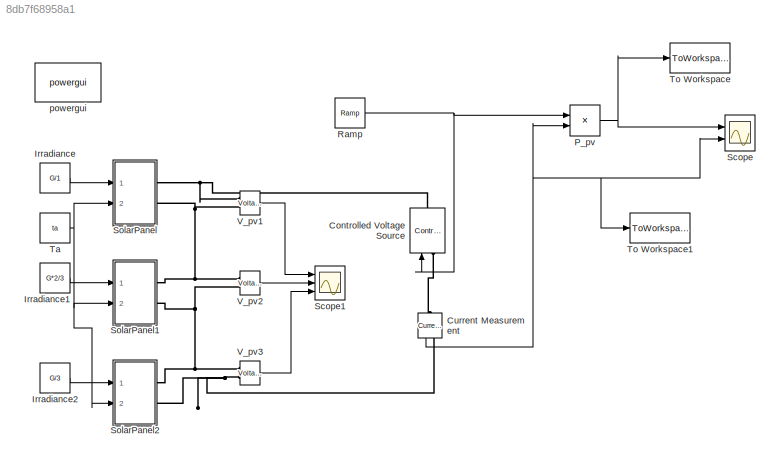
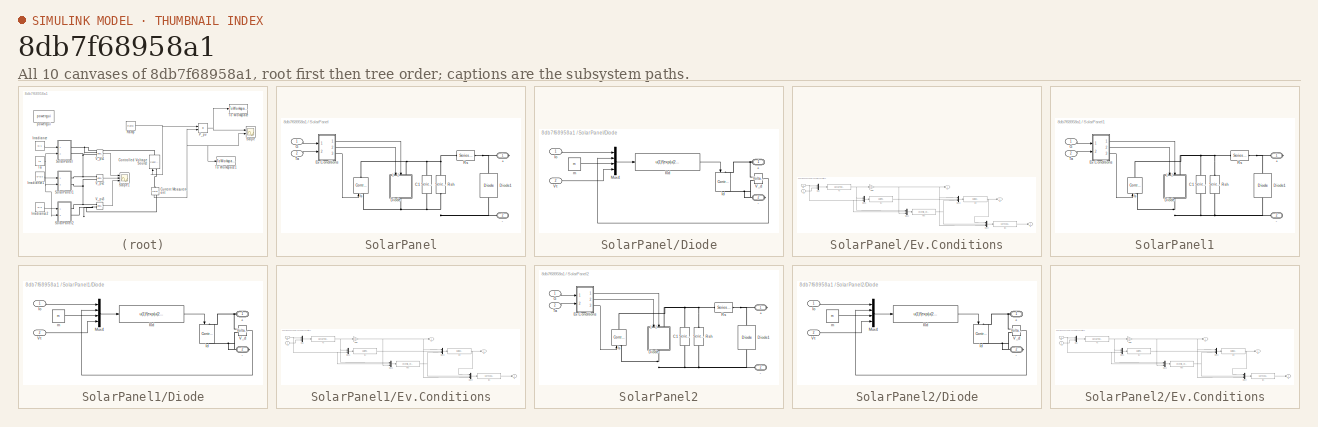
[diagram: thumbnail index - all 10 canvases of the model, root first then tree order]
MODEL slx_8db7f68958a1
KIND model
CONFIG AbsTol = auto
CONFIG FixedStep = 2e-6
CONFIG MaxStep = auto
CONFIG MinStep = auto
CONFIG RelTol = 2e-6
CONFIG SampleTimeConstraint = Unconstrained
CONFIG Solver = ode4
CONFIG SolverMode = Auto
CONFIG SolverName = ode4
CONFIG StartTime = 0.0
CONFIG StopTime = 1.1
BLOCK [Reference] Controlled Voltage Source  REF=powerlib/Electrical
Sources/Controlled Voltage Source
  Ports = [1, 0, 0, 0, 0, 1, 1]
  SourceBlock = powerlib/Electrical\nSources/Controlled Voltage Source
  SourceType = Controlled Voltage Source
BLOCK [Reference] Current Measurement  REF=powerlib/Measurements/Current Measurement
  Ports = [0, 1, 0, 0, 0, 1, 1]
  SourceBlock = powerlib/Measurements/Current Measurement
  SourceType = Current Measurement
  UserDataPersistent = on
BLOCK [Constant] Irradiance
  Value = G/1
BLOCK [Constant] Irradiance1
  Value = G*2/3
BLOCK [Constant] Irradiance2
  Value = G/3
BLOCK [Product] P_pv
  InputSameDT = off
  OutDataTypeStr = Inherit: Inherit via internal rule
  Ports = [2, 1]
  RndMeth = Floor
  SaturateOnIntegerOverflow = off
BLOCK [Reference] Ramp  REF=simulink/Sources/Ramp
  Ports = [0, 1]
  SourceBlock = simulink/Sources/Ramp
  SourceType = Ramp
BLOCK [Scope] Scope
  NumInputPorts = 2
  Ports = [2]
  ScopeSpecificationString = Simulink.scopes.TimeScopeBlockCfg('CurrentConfiguration', extmgr.ConfigurationSet(extmgr.Configuration('Core','General UI',true),extmgr.Configuration('Core','Source UI',true),extmgr.Configuration('Sources','WiredSimulink',true),extmgr.Configuration('Visuals','Time Domain',true,'SerializedDisplays',{struct('MinYLimReal','-21.50167','MaxYLimReal','440.88661','YLabelReal','','MinYLimMag','0.00000','M...<+2069ch>
BLOCK [Scope] Scope1
  NumInputPorts = 3
  Ports = [3]
  ScopeSpecificationString = Simulink.scopes.TimeScopeBlockCfg('CurrentConfiguration', extmgr.ConfigurationSet(extmgr.Configuration('Core','General UI',true),extmgr.Configuration('Core','Source UI',true),extmgr.Configuration('Sources','WiredSimulink',true,'DataLoggingVariableName','ScopeData1'),extmgr.Configuration('Visuals','Time Domain',true,'SerializedDisplays',{struct('MinYLimReal','-4.46712','MaxYLimReal','40.1469','YLab...<+1526ch>
BLOCK [SubSystem] SolarPanel
  Ports = [2, 0, 0, 0, 0, 0, 2]
  RequestExecContextInheritance = off
  Variant = off
BLOCK [PMIOPort] SolarPanel/+
  Port = 1
  Side = Right
BLOCK [PMIOPort] SolarPanel/-
  Port = 2
  Side = Right
BLOCK [Reference] SolarPanel/C1  REF=powerlib/Elements/Series RLC Branch
  Ports = [0, 0, 0, 0, 0, 1, 1]
  SourceBlock = powerlib/Elements/Series RLC Branch
  SourceType = Series RLC Branch
BLOCK [SubSystem] SolarPanel/Diode
  AncestorBlock = re_lib/Solar/PV Array/Diode Rsh
  Ports = [2, 0, 0, 0, 0, 1, 1]
  RequestExecContextInheritance = off
  Variant = off
BLOCK [PMIOPort] SolarPanel/Diode/+
  Port = 1
  Side = Left
BLOCK [PMIOPort] SolarPanel/Diode/-
  Port = 2
  Side = Right
BLOCK [Fcn] SolarPanel/Diode/I0d
  Expr = u(1)*(exp(u(2)/(u(3)*u(4)))-1)
BLOCK [Reference] SolarPanel/Diode/Id  REF=powerlib/Electrical
Sources/Controlled Current Source
  Ports = [1, 0, 0, 0, 0, 1, 1]
  SourceBlock = powerlib/Electrical\nSources/Controlled Current Source
  SourceType = Controlled Current Source
BLOCK [Inport] SolarPanel/Diode/Io
  IconDisplay = Port number
BLOCK [Mux] SolarPanel/Diode/Mux4
  DisplayOption = bar
  Ports = [4, 1]
BLOCK [Reference] SolarPanel/Diode/V_d  REF=powerlib/Measurements/Voltage Measurement
  Ports = [0, 1, 0, 0, 0, 2]
  SourceBlock = powerlib/Measurements/Voltage Measurement
  SourceType = Voltage Measurement
BLOCK [Inport] SolarPanel/Diode/Vt
  IconDisplay = Port number
  Port = 2
BLOCK [Constant] SolarPanel/Diode/m
  Value = m
BLOCK [Reference] SolarPanel/Diode1  REF=powerlib/Power
Electronics/Diode
  Ports = [0, 0, 0, 0, 0, 1, 1]
  SourceBlock = powerlib/Power\nElectronics/Diode
  SourceType = Diode
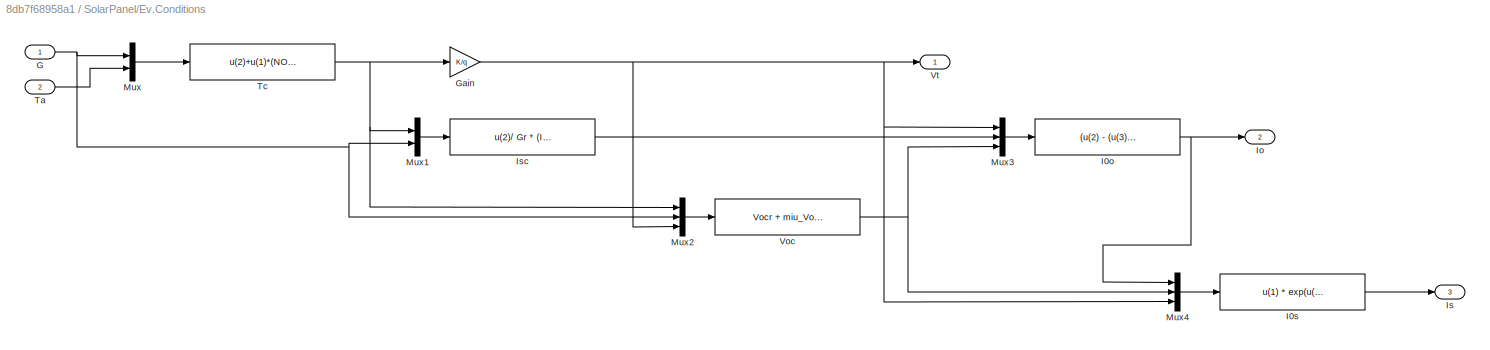
BLOCK [SubSystem] SolarPanel/Ev.Conditions
  Ports = [2, 3]
  RequestExecContextInheritance = off
  Variant = off
BLOCK [Inport] SolarPanel/Ev.Conditions/G
  IconDisplay = Port number
BLOCK [Gain] SolarPanel/Ev.Conditions/Gain
  Gain = K/q
  OutDataTypeStr = Inherit: Inherit via internal rule
  ParamDataTypeStr = Inherit: Inherit via internal rule
  SaturateOnIntegerOverflow = off
BLOCK [Fcn] SolarPanel/Ev.Conditions/I0o
  Expr = (u(2) - (u(3) - Rs*u(2))/ Rsh) * exp(-u(3)/ (m*u(1)))
BLOCK [Fcn] SolarPanel/Ev.Conditions/I0s
  Expr = u(1) * exp(u(2)/ (m*u(3))) + u(2)/ Rsh
BLOCK [Outport] SolarPanel/Ev.Conditions/Io
  IconDisplay = Port number
  Port = 2
BLOCK [Outport] SolarPanel/Ev.Conditions/Is
  IconDisplay = Port number
  Port = 3
BLOCK [Fcn] SolarPanel/Ev.Conditions/Isc
  Expr = u(2)/ Gr * (Iscr + miu_Isc*(u(1) - Tr))
BLOCK [Mux] SolarPanel/Ev.Conditions/Mux
  DisplayOption = bar
  Inputs = 2
  Ports = [2, 1]
BLOCK [Mux] SolarPanel/Ev.Conditions/Mux1
  DisplayOption = bar
  Inputs = 2
  Ports = [2, 1]
BLOCK [Mux] SolarPanel/Ev.Conditions/Mux2
  DisplayOption = bar
  Inputs = 3
  Ports = [3, 1]
BLOCK [Mux] SolarPanel/Ev.Conditions/Mux3
  DisplayOption = bar
  Inputs = 3
  Ports = [3, 1]
BLOCK [Mux] SolarPanel/Ev.Conditions/Mux4
  DisplayOption = bar
  Inputs = 3
  Ports = [3, 1]
BLOCK [Inport] SolarPanel/Ev.Conditions/Ta
  IconDisplay = Port number
  Port = 2
BLOCK [Fcn] SolarPanel/Ev.Conditions/Tc
  Expr = u(2)+u(1)*(NOCT-20)/800+T
BLOCK [Fcn] SolarPanel/Ev.Conditions/Voc
  Expr = Vocr + miu_Voc*(u(1) - Tr) + m*u(3)*log(u(2)/Gr)
BLOCK [Outport] SolarPanel/Ev.Conditions/Vt
  IconDisplay = Port number
BLOCK [Inport] SolarPanel/G
  IconDisplay = Port number
BLOCK [Reference] SolarPanel/Is  REF=powerlib/Electrical
Sources/Controlled Current Source
  Ports = [1, 0, 0, 0, 0, 1, 1]
  SourceBlock = powerlib/Electrical\nSources/Controlled Current Source
  SourceType = Controlled Current Source
BLOCK [Reference] SolarPanel/Rs  REF=powerlib/Elements/Series RLC Branch
  Ports = [0, 0, 0, 0, 0, 1, 1]
  SourceBlock = powerlib/Elements/Series RLC Branch
  SourceType = Series RLC Branch
BLOCK [Reference] SolarPanel/Rsh  REF=powerlib/Elements/Series RLC Branch
  Ports = [0, 0, 0, 0, 0, 1, 1]
  SourceBlock = powerlib/Elements/Series RLC Branch
  SourceType = Series RLC Branch
BLOCK [Inport] SolarPanel/Ta
  IconDisplay = Port number
  Port = 2
BLOCK [SubSystem] SolarPanel1
  Ports = [2, 0, 0, 0, 0, 0, 2]
  RequestExecContextInheritance = off
  Variant = off
BLOCK [PMIOPort] SolarPanel1/+
  Port = 1
  Side = Right
BLOCK [PMIOPort] SolarPanel1/-
  Port = 2
  Side = Right
BLOCK [Reference] SolarPanel1/C1  REF=powerlib/Elements/Series RLC Branch
  Ports = [0, 0, 0, 0, 0, 1, 1]
  SourceBlock = powerlib/Elements/Series RLC Branch
  SourceType = Series RLC Branch
BLOCK [SubSystem] SolarPanel1/Diode
  AncestorBlock = re_lib/Solar/PV Array/Diode Rsh
  Ports = [2, 0, 0, 0, 0, 1, 1]
  RequestExecContextInheritance = off
  Variant = off
BLOCK [PMIOPort] SolarPanel1/Diode/+
  Port = 1
  Side = Left
BLOCK [PMIOPort] SolarPanel1/Diode/-
  Port = 2
  Side = Right
BLOCK [Fcn] SolarPanel1/Diode/I0d
  Expr = u(1)*(exp(u(2)/(u(3)*u(4)))-1)
BLOCK [Reference] SolarPanel1/Diode/Id  REF=powerlib/Electrical
Sources/Controlled Current Source
  Ports = [1, 0, 0, 0, 0, 1, 1]
  SourceBlock = powerlib/Electrical\nSources/Controlled Current Source
  SourceType = Controlled Current Source
BLOCK [Inport] SolarPanel1/Diode/Io
  IconDisplay = Port number
BLOCK [Mux] SolarPanel1/Diode/Mux4
  DisplayOption = bar
  Ports = [4, 1]
BLOCK [Reference] SolarPanel1/Diode/V_d  REF=powerlib/Measurements/Voltage Measurement
  Ports = [0, 1, 0, 0, 0, 2]
  SourceBlock = powerlib/Measurements/Voltage Measurement
  SourceType = Voltage Measurement
BLOCK [Inport] SolarPanel1/Diode/Vt
  IconDisplay = Port number
  Port = 2
BLOCK [Constant] SolarPanel1/Diode/m
  Value = m
BLOCK [Reference] SolarPanel1/Diode1  REF=powerlib/Power
Electronics/Diode
  Ports = [0, 0, 0, 0, 0, 1, 1]
  SourceBlock = powerlib/Power\nElectronics/Diode
  SourceType = Diode
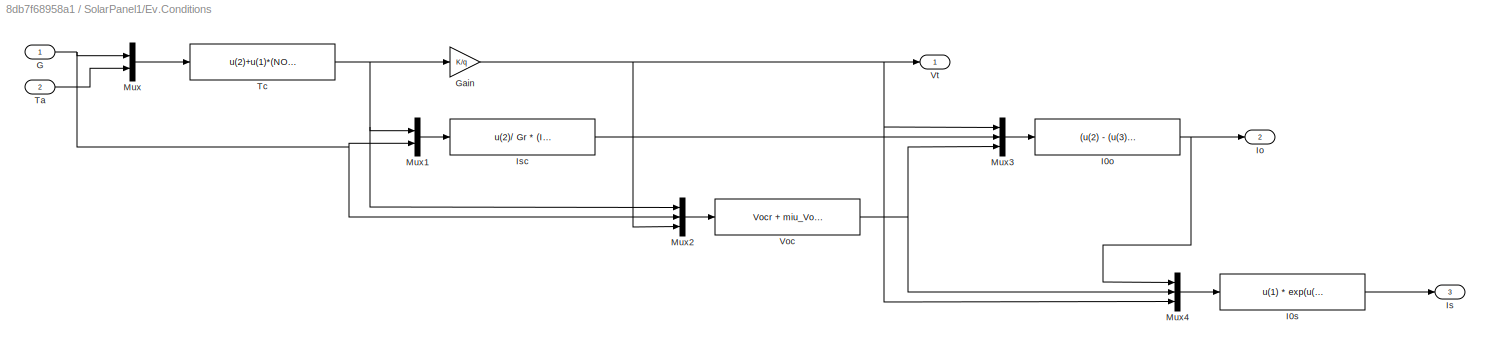
BLOCK [SubSystem] SolarPanel1/Ev.Conditions
  Ports = [2, 3]
  RequestExecContextInheritance = off
  Variant = off
BLOCK [Inport] SolarPanel1/Ev.Conditions/G
  IconDisplay = Port number
BLOCK [Gain] SolarPanel1/Ev.Conditions/Gain
  Gain = K/q
  OutDataTypeStr = Inherit: Inherit via internal rule
  ParamDataTypeStr = Inherit: Inherit via internal rule
  SaturateOnIntegerOverflow = off
BLOCK [Fcn] SolarPanel1/Ev.Conditions/I0o
  Expr = (u(2) - (u(3) - Rs*u(2))/ Rsh) * exp(-u(3)/ (m*u(1)))
BLOCK [Fcn] SolarPanel1/Ev.Conditions/I0s
  Expr = u(1) * exp(u(2)/ (m*u(3))) + u(2)/ Rsh
BLOCK [Outport] SolarPanel1/Ev.Conditions/Io
  IconDisplay = Port number
  Port = 2
BLOCK [Outport] SolarPanel1/Ev.Conditions/Is
  IconDisplay = Port number
  Port = 3
BLOCK [Fcn] SolarPanel1/Ev.Conditions/Isc
  Expr = u(2)/ Gr * (Iscr + miu_Isc*(u(1) - Tr))
BLOCK [Mux] SolarPanel1/Ev.Conditions/Mux
  DisplayOption = bar
  Inputs = 2
  Ports = [2, 1]
BLOCK [Mux] SolarPanel1/Ev.Conditions/Mux1
  DisplayOption = bar
  Inputs = 2
  Ports = [2, 1]
BLOCK [Mux] SolarPanel1/Ev.Conditions/Mux2
  DisplayOption = bar
  Inputs = 3
  Ports = [3, 1]
BLOCK [Mux] SolarPanel1/Ev.Conditions/Mux3
  DisplayOption = bar
  Inputs = 3
  Ports = [3, 1]
BLOCK [Mux] SolarPanel1/Ev.Conditions/Mux4
  DisplayOption = bar
  Inputs = 3
  Ports = [3, 1]
BLOCK [Inport] SolarPanel1/Ev.Conditions/Ta
  IconDisplay = Port number
  Port = 2
BLOCK [Fcn] SolarPanel1/Ev.Conditions/Tc
  Expr = u(2)+u(1)*(NOCT-20)/800+T
BLOCK [Fcn] SolarPanel1/Ev.Conditions/Voc
  Expr = Vocr + miu_Voc*(u(1) - Tr) + m*u(3)*log(u(2)/Gr)
BLOCK [Outport] SolarPanel1/Ev.Conditions/Vt
  IconDisplay = Port number
BLOCK [Inport] SolarPanel1/G
  IconDisplay = Port number
BLOCK [Reference] SolarPanel1/Is  REF=powerlib/Electrical
Sources/Controlled Current Source
  Ports = [1, 0, 0, 0, 0, 1, 1]
  SourceBlock = powerlib/Electrical\nSources/Controlled Current Source
  SourceType = Controlled Current Source
BLOCK [Reference] SolarPanel1/Rs  REF=powerlib/Elements/Series RLC Branch
  Ports = [0, 0, 0, 0, 0, 1, 1]
  SourceBlock = powerlib/Elements/Series RLC Branch
  SourceType = Series RLC Branch
BLOCK [Reference] SolarPanel1/Rsh  REF=powerlib/Elements/Series RLC Branch
  Ports = [0, 0, 0, 0, 0, 1, 1]
  SourceBlock = powerlib/Elements/Series RLC Branch
  SourceType = Series RLC Branch
BLOCK [Inport] SolarPanel1/Ta
  IconDisplay = Port number
  Port = 2
BLOCK [SubSystem] SolarPanel2
  Ports = [2, 0, 0, 0, 0, 0, 2]
  RequestExecContextInheritance = off
  Variant = off
BLOCK [PMIOPort] SolarPanel2/+
  Port = 1
  Side = Right
BLOCK [PMIOPort] SolarPanel2/-
  Port = 2
  Side = Right
BLOCK [Reference] SolarPanel2/C1  REF=powerlib/Elements/Series RLC Branch
  Ports = [0, 0, 0, 0, 0, 1, 1]
  SourceBlock = powerlib/Elements/Series RLC Branch
  SourceType = Series RLC Branch
BLOCK [SubSystem] SolarPanel2/Diode
  AncestorBlock = re_lib/Solar/PV Array/Diode Rsh
  Ports = [2, 0, 0, 0, 0, 1, 1]
  RequestExecContextInheritance = off
  Variant = off
BLOCK [PMIOPort] SolarPanel2/Diode/+
  Port = 1
  Side = Left
BLOCK [PMIOPort] SolarPanel2/Diode/-
  Port = 2
  Side = Right
BLOCK [Fcn] SolarPanel2/Diode/I0d
  Expr = u(1)*(exp(u(2)/(u(3)*u(4)))-1)
BLOCK [Reference] SolarPanel2/Diode/Id  REF=powerlib/Electrical
Sources/Controlled Current Source
  Ports = [1, 0, 0, 0, 0, 1, 1]
  SourceBlock = powerlib/Electrical\nSources/Controlled Current Source
  SourceType = Controlled Current Source
BLOCK [Inport] SolarPanel2/Diode/Io
  IconDisplay = Port number
BLOCK [Mux] SolarPanel2/Diode/Mux4
  DisplayOption = bar
  Ports = [4, 1]
BLOCK [Reference] SolarPanel2/Diode/V_d  REF=powerlib/Measurements/Voltage Measurement
  Ports = [0, 1, 0, 0, 0, 2]
  SourceBlock = powerlib/Measurements/Voltage Measurement
  SourceType = Voltage Measurement
BLOCK [Inport] SolarPanel2/Diode/Vt
  IconDisplay = Port number
  Port = 2
BLOCK [Constant] SolarPanel2/Diode/m
  Value = m
BLOCK [Reference] SolarPanel2/Diode1  REF=powerlib/Power
Electronics/Diode
  Ports = [0, 0, 0, 0, 0, 1, 1]
  SourceBlock = powerlib/Power\nElectronics/Diode
  SourceType = Diode
BLOCK [SubSystem] SolarPanel2/Ev.Conditions
  Ports = [2, 3]
  RequestExecContextInheritance = off
  Variant = off
BLOCK [Inport] SolarPanel2/Ev.Conditions/G
  IconDisplay = Port number
BLOCK [Gain] SolarPanel2/Ev.Conditions/Gain
  Gain = K/q
  OutDataTypeStr = Inherit: Inherit via internal rule
  ParamDataTypeStr = Inherit: Inherit via internal rule
  SaturateOnIntegerOverflow = off
BLOCK [Fcn] SolarPanel2/Ev.Conditions/I0o
  Expr = (u(2) - (u(3) - Rs*u(2))/ Rsh) * exp(-u(3)/ (m*u(1)))
BLOCK [Fcn] SolarPanel2/Ev.Conditions/I0s
  Expr = u(1) * exp(u(2)/ (m*u(3))) + u(2)/ Rsh
BLOCK [Outport] SolarPanel2/Ev.Conditions/Io
  IconDisplay = Port number
  Port = 2
BLOCK [Outport] SolarPanel2/Ev.Conditions/Is
  IconDisplay = Port number
  Port = 3
BLOCK [Fcn] SolarPanel2/Ev.Conditions/Isc
  Expr = u(2)/ Gr * (Iscr + miu_Isc*(u(1) - Tr))
BLOCK [Mux] SolarPanel2/Ev.Conditions/Mux
  DisplayOption = bar
  Inputs = 2
  Ports = [2, 1]
BLOCK [Mux] SolarPanel2/Ev.Conditions/Mux1
  DisplayOption = bar
  Inputs = 2
  Ports = [2, 1]
BLOCK [Mux] SolarPanel2/Ev.Conditions/Mux2
  DisplayOption = bar
  Inputs = 3
  Ports = [3, 1]
BLOCK [Mux] SolarPanel2/Ev.Conditions/Mux3
  DisplayOption = bar
  Inputs = 3
  Ports = [3, 1]
BLOCK [Mux] SolarPanel2/Ev.Conditions/Mux4
  DisplayOption = bar
  Inputs = 3
  Ports = [3, 1]
BLOCK [Inport] SolarPanel2/Ev.Conditions/Ta
  IconDisplay = Port number
  Port = 2
BLOCK [Fcn] SolarPanel2/Ev.Conditions/Tc
  Expr = u(2)+u(1)*(NOCT-20)/800+T
BLOCK [Fcn] SolarPanel2/Ev.Conditions/Voc
  Expr = Vocr + miu_Voc*(u(1) - Tr) + m*u(3)*log(u(2)/Gr)
BLOCK [Outport] SolarPanel2/Ev.Conditions/Vt
  IconDisplay = Port number
BLOCK [Inport] SolarPanel2/G
  IconDisplay = Port number
BLOCK [Reference] SolarPanel2/Is  REF=powerlib/Electrical
Sources/Controlled Current Source
  Ports = [1, 0, 0, 0, 0, 1, 1]
  SourceBlock = powerlib/Electrical\nSources/Controlled Current Source
  SourceType = Controlled Current Source
BLOCK [Reference] SolarPanel2/Rs  REF=powerlib/Elements/Series RLC Branch
  Ports = [0, 0, 0, 0, 0, 1, 1]
  SourceBlock = powerlib/Elements/Series RLC Branch
  SourceType = Series RLC Branch
BLOCK [Reference] SolarPanel2/Rsh  REF=powerlib/Elements/Series RLC Branch
  Ports = [0, 0, 0, 0, 0, 1, 1]
  SourceBlock = powerlib/Elements/Series RLC Branch
  SourceType = Series RLC Branch
BLOCK [Inport] SolarPanel2/Ta
  IconDisplay = Port number
  Port = 2
BLOCK [Constant] Ta
  Value = ta
BLOCK [ToWorkspace] To Workspace
  FixptAsFi = on
  MaxDataPoints = inf
  Ports = [1]
  SampleTime = -1
  Save2DSignal = 3-D array (concatenate along third dimension)
  SaveFormat = Timeseries
  VariableName = simout
BLOCK [ToWorkspace] To Workspace1
  FixptAsFi = on
  MaxDataPoints = inf
  Ports = [1]
  SampleTime = -1
  Save2DSignal = 3-D array (concatenate along third dimension)
  SaveFormat = Timeseries
  VariableName = simout1
BLOCK [Reference] V_pv1  REF=powerlib/Measurements/Voltage Measurement
  Ports = [0, 1, 0, 0, 0, 2]
  SourceBlock = powerlib/Measurements/Voltage Measurement
  SourceType = Voltage Measurement
BLOCK [Reference] V_pv2  REF=powerlib/Measurements/Voltage Measurement
  Ports = [0, 1, 0, 0, 0, 2]
  SourceBlock = powerlib/Measurements/Voltage Measurement
  SourceType = Voltage Measurement
BLOCK [Reference] V_pv3  REF=powerlib/Measurements/Voltage Measurement
  Ports = [0, 1, 0, 0, 0, 2]
  SourceBlock = powerlib/Measurements/Voltage Measurement
  SourceType = Voltage Measurement
BLOCK [Reference] powergui  REF=powerlib/powergui
  Ports = []
  Priority = 1
  SourceBlock = powerlib/powergui
  SourceType = PSB option menu block
  UserDataPersistent = on
NET Current Measurement:1 -> P_pv:2, Scope:2, To Workspace1:1
LINE Irradiance1:1 -> SolarPanel1:1
LINE Irradiance2:1 -> SolarPanel2:1
LINE Irradiance:1 -> SolarPanel:1
NET P_pv:1 -> Scope:1, To Workspace:1
NET Ramp:1 -> Controlled Voltage Source:1, P_pv:1
NET SolarPanel/Ev.Conditions/G:1 -> SolarPanel/Ev.Conditions/Mux1:2, SolarPanel/Ev.Conditions/Mux2:2, SolarPanel/Ev.Conditions/Mux:1
NET SolarPanel/Ev.Conditions/Gain:1 -> SolarPanel/Ev.Conditions/Mux2:3, SolarPanel/Ev.Conditions/Mux3:1, SolarPanel/Ev.Conditions/Mux4:3, SolarPanel/Ev.Conditions/Vt:1
NET SolarPanel/Ev.Conditions/I0o:1 -> SolarPanel/Ev.Conditions/Io:1, SolarPanel/Ev.Conditions/Mux4:1
LINE SolarPanel/Ev.Conditions/I0s:1 -> SolarPanel/Ev.Conditions/Is:1
LINE SolarPanel/Ev.Conditions/Isc:1 -> SolarPanel/Ev.Conditions/Mux3:2
LINE SolarPanel/Ev.Conditions/Mux1:1 -> SolarPanel/Ev.Conditions/Isc:1
LINE SolarPanel/Ev.Conditions/Mux2:1 -> SolarPanel/Ev.Conditions/Voc:1
LINE SolarPanel/Ev.Conditions/Mux3:1 -> SolarPanel/Ev.Conditions/I0o:1
LINE SolarPanel/Ev.Conditions/Mux4:1 -> SolarPanel/Ev.Conditions/I0s:1
LINE SolarPanel/Ev.Conditions/Mux:1 -> SolarPanel/Ev.Conditions/Tc:1
LINE SolarPanel/Ev.Conditions/Ta:1 -> SolarPanel/Ev.Conditions/Mux:2
NET SolarPanel/Ev.Conditions/Tc:1 -> SolarPanel/Ev.Conditions/Gain:1, SolarPanel/Ev.Conditions/Mux1:1, SolarPanel/Ev.Conditions/Mux2:1
NET SolarPanel/Ev.Conditions/Voc:1 -> SolarPanel/Ev.Conditions/Mux3:3, SolarPanel/Ev.Conditions/Mux4:2
LINE SolarPanel/Ev.Conditions:1 -> SolarPanel/Diode:2
LINE SolarPanel/Ev.Conditions:2 -> SolarPanel/Diode:1
LINE SolarPanel/Ev.Conditions:3 -> SolarPanel/Is:1
LINE SolarPanel/G:1 -> SolarPanel/Ev.Conditions:1
LINE SolarPanel/Ta:1 -> SolarPanel/Ev.Conditions:2
NET SolarPanel1/Ev.Conditions/G:1 -> SolarPanel1/Ev.Conditions/Mux1:2, SolarPanel1/Ev.Conditions/Mux2:2, SolarPanel1/Ev.Conditions/Mux:1
NET SolarPanel1/Ev.Conditions/Gain:1 -> SolarPanel1/Ev.Conditions/Mux2:3, SolarPanel1/Ev.Conditions/Mux3:1, SolarPanel1/Ev.Conditions/Mux4:3, SolarPanel1/Ev.Conditions/Vt:1
NET SolarPanel1/Ev.Conditions/I0o:1 -> SolarPanel1/Ev.Conditions/Io:1, SolarPanel1/Ev.Conditions/Mux4:1
LINE SolarPanel1/Ev.Conditions/I0s:1 -> SolarPanel1/Ev.Conditions/Is:1
LINE SolarPanel1/Ev.Conditions/Isc:1 -> SolarPanel1/Ev.Conditions/Mux3:2
LINE SolarPanel1/Ev.Conditions/Mux1:1 -> SolarPanel1/Ev.Conditions/Isc:1
LINE SolarPanel1/Ev.Conditions/Mux2:1 -> SolarPanel1/Ev.Conditions/Voc:1
LINE SolarPanel1/Ev.Conditions/Mux3:1 -> SolarPanel1/Ev.Conditions/I0o:1
LINE SolarPanel1/Ev.Conditions/Mux4:1 -> SolarPanel1/Ev.Conditions/I0s:1
LINE SolarPanel1/Ev.Conditions/Mux:1 -> SolarPanel1/Ev.Conditions/Tc:1
LINE SolarPanel1/Ev.Conditions/Ta:1 -> SolarPanel1/Ev.Conditions/Mux:2
NET SolarPanel1/Ev.Conditions/Tc:1 -> SolarPanel1/Ev.Conditions/Gain:1, SolarPanel1/Ev.Conditions/Mux1:1, SolarPanel1/Ev.Conditions/Mux2:1
NET SolarPanel1/Ev.Conditions/Voc:1 -> SolarPanel1/Ev.Conditions/Mux3:3, SolarPanel1/Ev.Conditions/Mux4:2
LINE SolarPanel1/Ev.Conditions:1 -> SolarPanel1/Diode:2
LINE SolarPanel1/Ev.Conditions:2 -> SolarPanel1/Diode:1
LINE SolarPanel1/Ev.Conditions:3 -> SolarPanel1/Is:1
LINE SolarPanel1/G:1 -> SolarPanel1/Ev.Conditions:1
LINE SolarPanel1/Ta:1 -> SolarPanel1/Ev.Conditions:2
NET SolarPanel2/Ev.Conditions/G:1 -> SolarPanel2/Ev.Conditions/Mux1:2, SolarPanel2/Ev.Conditions/Mux2:2, SolarPanel2/Ev.Conditions/Mux:1
NET SolarPanel2/Ev.Conditions/Gain:1 -> SolarPanel2/Ev.Conditions/Mux2:3, SolarPanel2/Ev.Conditions/Mux3:1, SolarPanel2/Ev.Conditions/Mux4:3, SolarPanel2/Ev.Conditions/Vt:1
NET SolarPanel2/Ev.Conditions/I0o:1 -> SolarPanel2/Ev.Conditions/Io:1, SolarPanel2/Ev.Conditions/Mux4:1
LINE SolarPanel2/Ev.Conditions/I0s:1 -> SolarPanel2/Ev.Conditions/Is:1
LINE SolarPanel2/Ev.Conditions/Isc:1 -> SolarPanel2/Ev.Conditions/Mux3:2
LINE SolarPanel2/Ev.Conditions/Mux1:1 -> SolarPanel2/Ev.Conditions/Isc:1
LINE SolarPanel2/Ev.Conditions/Mux2:1 -> SolarPanel2/Ev.Conditions/Voc:1
LINE SolarPanel2/Ev.Conditions/Mux3:1 -> SolarPanel2/Ev.Conditions/I0o:1
LINE SolarPanel2/Ev.Conditions/Mux4:1 -> SolarPanel2/Ev.Conditions/I0s:1
LINE SolarPanel2/Ev.Conditions/Mux:1 -> SolarPanel2/Ev.Conditions/Tc:1
LINE SolarPanel2/Ev.Conditions/Ta:1 -> SolarPanel2/Ev.Conditions/Mux:2
NET SolarPanel2/Ev.Conditions/Tc:1 -> SolarPanel2/Ev.Conditions/Gain:1, SolarPanel2/Ev.Conditions/Mux1:1, SolarPanel2/Ev.Conditions/Mux2:1
NET SolarPanel2/Ev.Conditions/Voc:1 -> SolarPanel2/Ev.Conditions/Mux3:3, SolarPanel2/Ev.Conditions/Mux4:2
LINE SolarPanel2/Ev.Conditions:1 -> SolarPanel2/Diode:2
LINE SolarPanel2/Ev.Conditions:2 -> SolarPanel2/Diode:1
LINE SolarPanel2/Ev.Conditions:3 -> SolarPanel2/Is:1
LINE SolarPanel2/G:1 -> SolarPanel2/Ev.Conditions:1
LINE SolarPanel2/Ta:1 -> SolarPanel2/Ev.Conditions:2
NET Ta:1 -> SolarPanel1:2, SolarPanel2:2, SolarPanel:2
LINE V_pv1:1 -> Scope1:1
LINE V_pv2:1 -> Scope1:2
LINE V_pv3:1 -> Scope1:3
PLINE Controlled Voltage Source:LConn1 -- Current Measurement:LConn1
PNET net1: Controlled Voltage Source:RConn1 -- SolarPanel:RConn1 -- V_pv1:LConn1
PNET net2: Current Measurement:RConn1 -- SolarPanel2:RConn2 -- V_pv3:LConn2
PNET net3: SolarPanel/+:RConn1 -- SolarPanel/Diode1:RConn1 -- SolarPanel/Rs:RConn1
PNET net4: SolarPanel/-:RConn1 -- SolarPanel/C1:RConn1 -- SolarPanel/Diode1:LConn1 -- SolarPanel/Diode:RConn1 -- SolarPanel/Is:LConn1 -- SolarPanel/Rsh:RConn1
PNET net5: SolarPanel/C1:LConn1 -- SolarPanel/Diode:LConn1 -- SolarPanel/Is:RConn1 -- SolarPanel/Rs:LConn1 -- SolarPanel/Rsh:LConn1
PNET net6: SolarPanel1/+:RConn1 -- SolarPanel1/Diode1:RConn1 -- SolarPanel1/Rs:RConn1
PNET net7: SolarPanel1/-:RConn1 -- SolarPanel1/C1:RConn1 -- SolarPanel1/Diode1:LConn1 -- SolarPanel1/Diode:RConn1 -- SolarPanel1/Is:LConn1 -- SolarPanel1/Rsh:RConn1
PNET net8: SolarPanel1/C1:LConn1 -- SolarPanel1/Diode:LConn1 -- SolarPanel1/Is:RConn1 -- SolarPanel1/Rs:LConn1 -- SolarPanel1/Rsh:LConn1
PNET net9: SolarPanel1:RConn1 -- SolarPanel:RConn2 -- V_pv1:LConn2 -- V_pv2:LConn1
PNET net10: SolarPanel1:RConn2 -- SolarPanel2:RConn1 -- V_pv2:LConn2 -- V_pv3:LConn1
PNET net11: SolarPanel2/+:RConn1 -- SolarPanel2/Diode1:RConn1 -- SolarPanel2/Rs:RConn1
PNET net12: SolarPanel2/-:RConn1 -- SolarPanel2/C1:RConn1 -- SolarPanel2/Diode1:LConn1 -- SolarPanel2/Diode:RConn1 -- SolarPanel2/Is:LConn1 -- SolarPanel2/Rsh:RConn1
PNET net13: SolarPanel2/C1:LConn1 -- SolarPanel2/Diode:LConn1 -- SolarPanel2/Is:RConn1 -- SolarPanel2/Rs:LConn1 -- SolarPanel2/Rsh:LConn1
note: NET lines group one-source signal fan-out (src -> all destinations, sorted); 1:1 wires keep LINE; PNET lines group multi-terminal physical nets as a canonical sorted terminal list (undirected conserving connections); 2-terminal nets keep the pairwise PLINE form
